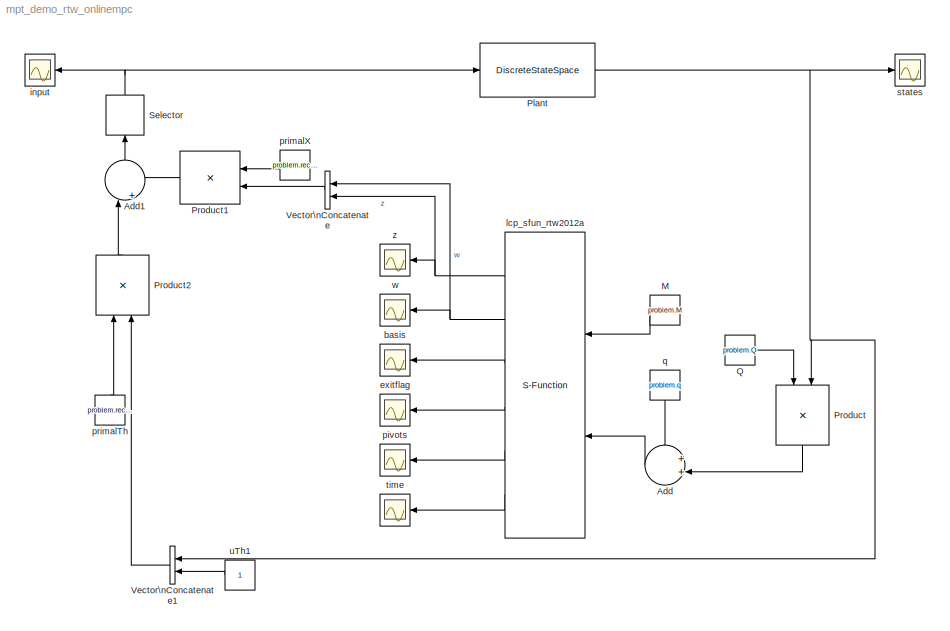
MODEL mpt_demo_rtw_onlinempc
KIND model
BLOCK [Sum] Add
  IconShape = round
  InputSameDT = off
  Inputs = ++|
  OutDataTypeStr = Inherit: Inherit via internal rule
  Ports = [2, 1]
  SID = 20
  SaturateOnIntegerOverflow = off
BLOCK [Sum] Add1
  IconShape = round
  InputSameDT = off
  Inputs = |++
  OutDataTypeStr = Inherit: Inherit via internal rule
  Ports = [2, 1]
  SID = 32
  SaturateOnIntegerOverflow = off
BLOCK [Constant] M
  SID = 11
  Value = problem.M
BLOCK [DiscreteStateSpace] Plant
  A = [0.5403   -0.8415; 0.8415    0.5403]
  B = [ -0.4597; 0.8415]
  C = eye(2)
  D = [0;0]
  SID = 1
  X0 = [-2;3]
BLOCK [Product] Product
  InputSameDT = off
  Multiplication = Matrix(*)
  OutDataTypeStr = Inherit: Inherit via internal rule
  Ports = [2, 1]
  SID = 29
  SaturateOnIntegerOverflow = off
BLOCK [Product] Product1
  InputSameDT = off
  Multiplication = Matrix(*)
  OutDataTypeStr = Inherit: Inherit via internal rule
  Ports = [2, 1]
  SID = 30
  SaturateOnIntegerOverflow = off
BLOCK [Product] Product2
  InputSameDT = off
  Multiplication = Matrix(*)
  OutDataTypeStr = Inherit: Inherit via internal rule
  Ports = [2, 1]
  SID = 34
  SaturateOnIntegerOverflow = off
BLOCK [Constant] Q
  SID = 22
  Value = problem.Q
BLOCK [Selector] Selector
  IndexOptions = Index vector (dialog)
  Indices = [1]
  InputPortWidth = 20
  OutputSizes = 1
  Ports = [1, 1]
  SID = 60
BLOCK [Concatenate] Vector\nConcatenate
  Ports = [2, 1]
  SID = 26
BLOCK [Concatenate] Vector\nConcatenate1
  Ports = [2, 1]
  SID = 35
BLOCK [Scope] basis
  DataFormat = StructureWithTime
  Floating = off
  NumInputPorts = 1
  Ports = [1]
  SID = 12
  SampleTime = 0
  SaveName = ScopeData2
  ShowLegends = off
BLOCK [Scope] exitflag
  DataFormat = StructureWithTime
  Floating = off
  NumInputPorts = 1
  Ports = [1]
  SID = 13
  SampleTime = 0
  SaveName = ScopeData3
  ShowLegends = off
BLOCK [Scope] input
  DataFormat = StructureWithTime
  Floating = off
  NumInputPorts = 1
  Ports = [1]
  SID = 5
  SampleTime = 0
  SaveName = ScopeData1
  ShowLegends = off
BLOCK [S-Function] lcp_sfun_rtw2012a
  EnableBusSupport = off
  FunctionName = lcp_sfun
  MaskCallbackString = |
  MaskDescription = Linear-complementarity problem (LCP) solver.
  MaskDisplay = disp('LCP solver\\n for RTW 2012a');
  MaskEnableString = on,on
  MaskHelp = <pre>\nLCP: Matlab interface to lexicographic Lemke algorithm \n=======================================================\n\n\nSYNTAX\n------\n   \n    [z, w, basis, exitflag, pivots, time] = lcp(M, q, options)\n  \n\nDESCRIPTION\n-----------\n   The lexicographic Lemke algorithm solves linear-complementarity problem (LCP) of the form \n                                          find   w, z          ...<+9701ch>
  MaskIconFrame = on
  MaskIconOpaque = on
  MaskIconRotate = none
  MaskIconUnits = autoscale
  MaskInitialization = % find where LCP solver is installed\np = which('lcp');\n\nif isempty(p)\n    error('Could not find path to LCP solver. Add LCP solver to Matlab path.');\nend\n\nif ispc\n    % find where RTW templates are installed\n    s = which('lcp_rtwin.tmf');\n    if isempty(s)\n        error('Could not find RTW templates for LCP solver. Add the path to the LCP solver configured for for Real-Time Workshop \"...<+5084ch>
  MaskPortRotate = default
  MaskPromptString = Number of variables in LCP|Sampling time
  MaskStyleString = edit,edit
  MaskToolTipString = on,on
  MaskTunableValueString = off,off
  MaskType = LCP solver
  MaskValueString = problem.n|1
  MaskVariables = n=@1;ts=@2;
  MaskVisibilityString = on,on
  Parameters = n,ts
  Ports = [2, 6]
  SID = 62
BLOCK [Scope] pivots
  DataFormat = StructureWithTime
  Floating = off
  NumInputPorts = 1
  Ports = [1]
  SID = 15
  SampleTime = 0
  SaveName = ScopeData4
  ShowLegends = off
BLOCK [Constant] primalTh
  SID = 33
  Value = problem.recover.primalTh
BLOCK [Constant] primalX
  SID = 31
  Value = problem.recover.primalX
BLOCK [Constant] q
  SID = 16
  Value = problem.q
BLOCK [Scope] states
  DataFormat = StructureWithTime
  Floating = off
  NumInputPorts = 1
  Ports = [1]
  SID = 4
  SampleTime = 0
  ShowLegends = off
BLOCK [Scope] time
  DataFormat = StructureWithTime
  Floating = off
  NumInputPorts = 1
  Ports = [1]
  SID = 17
  SampleTime = 0
  SaveName = ScopeData5
  ShowLegends = off
BLOCK [Constant] uTh1
  SID = 36
BLOCK [Scope] w
  DataFormat = StructureWithTime
  Floating = off
  NumInputPorts = 1
  Ports = [1]
  SID = 18
  SampleTime = 0
  SaveName = ScopeData6
  ShowLegends = off
BLOCK [Scope] z
  DataFormat = StructureWithTime
  Floating = off
  NumInputPorts = 1
  Ports = [1]
  SID = 19
  SampleTime = 0
  SaveName = ScopeData7
  ShowLegends = off
LINE Add1:1 -> Selector:1
LINE Add:1 -> lcp_sfun_rtw2012a:2
LINE M:1 -> lcp_sfun_rtw2012a:1
NET Plant:1 -> Product:2, Vector\nConcatenate1:1, states:1
LINE Product1:1 -> Add1:2
LINE Product2:1 -> Add1:1
LINE Product:1 -> Add:2
LINE Q:1 -> Product:1
NET Selector:1 -> Plant:1, input:1
LINE Vector\nConcatenate1:1 -> Product2:2
LINE Vector\nConcatenate:1 -> Product1:2
NET lcp_sfun_rtw2012a:1 -> Vector\nConcatenate:2, z:1
NET lcp_sfun_rtw2012a:2 -> Vector\nConcatenate:1, w:1
LINE lcp_sfun_rtw2012a:3 -> basis:1
LINE lcp_sfun_rtw2012a:4 -> exitflag:1
LINE lcp_sfun_rtw2012a:5 -> pivots:1
LINE lcp_sfun_rtw2012a:6 -> time:1
LINE primalTh:1 -> Product2:1
LINE primalX:1 -> Product1:1
LINE q:1 -> Add:1
LINE uTh1:1 -> Vector\nConcatenate1:2
note: NET lines group one-source signal fan-out (src -> all destinations, sorted); 1:1 wires keep LINE
